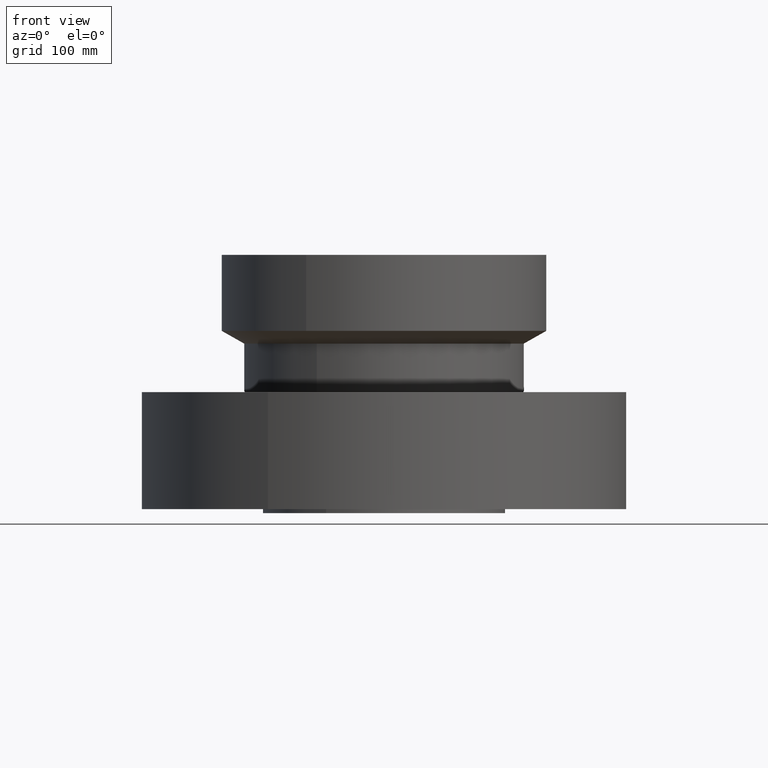
[diagram: clean part render]
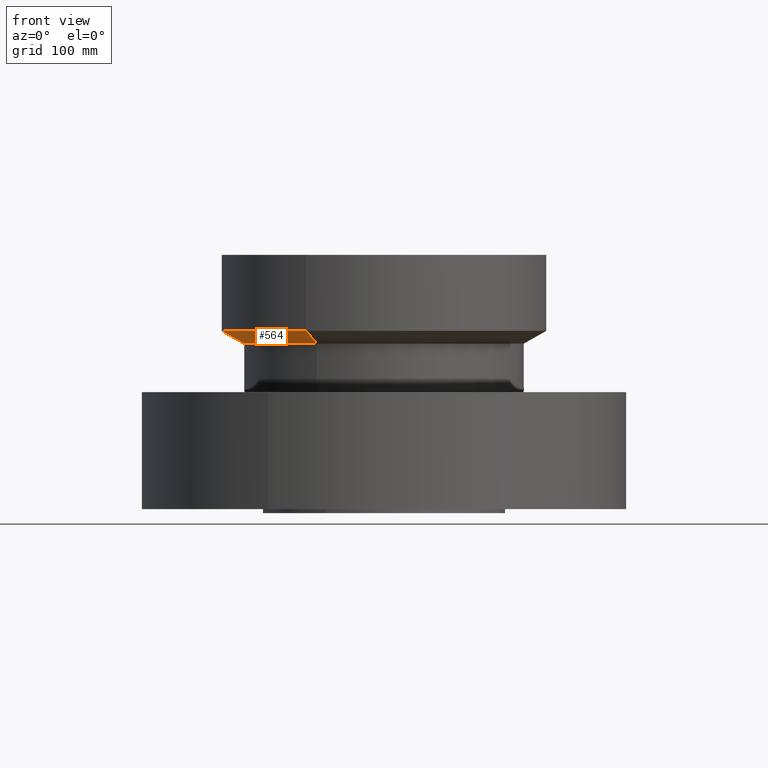
[diagram: same view with one face highlighted and labeled with its STEP entity id]
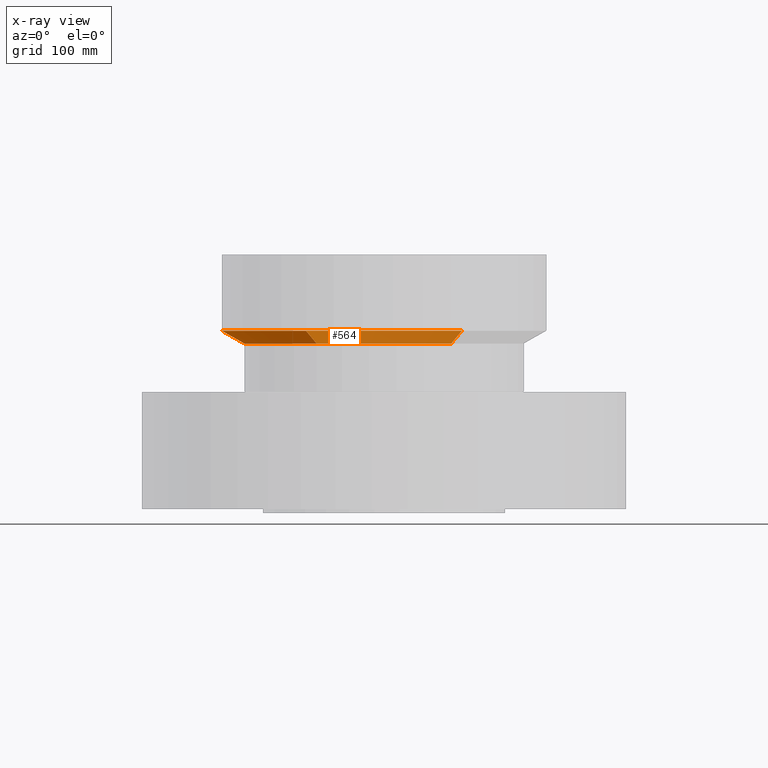
[diagram: x-ray of the same camera — body ghosted, the highlighted face saturated]
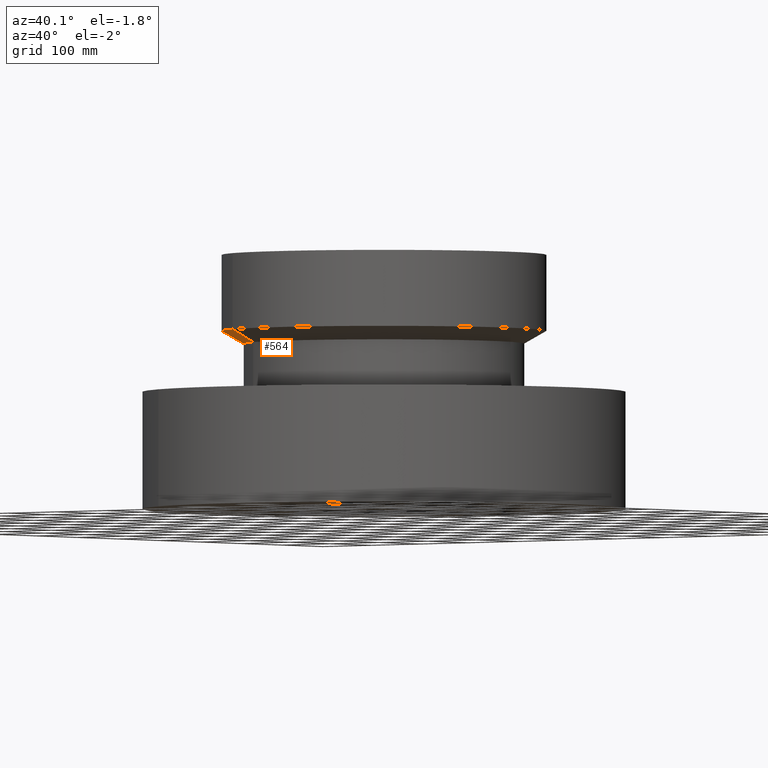
[diagram: same view with one face highlighted and labeled with its STEP entity id]
A machine part, front view. The second image highlights one B-rep face of the part: STEP entity #564.
The next image is the same camera in x-ray: the body ghosted, the highlighted face saturated — about 65% of this face is hidden behind the body in this view.
A second angle (auxiliary view) of the same face is appended — the face is thin or edge-on in the first view.
In plain terms, the highlighted conical surface has half-angle 60 deg.
Its self-contained STEP definition (entity closure, byte-faithful):
#512=AXIS2_PLACEMENT_3D('Circle Axis2P3D',#510,#511,$) ;
#525=AXIS2_PLACEMENT_3D('Cone Axis2P3D',#522,#523,#524) ;
#555=AXIS2_PLACEMENT_3D('Circle Axis2P3D',#553,#554,$) ;
#488=CARTESIAN_POINT('Vertex',(4.16620793049,7.62619246286,10.25)) ;
#495=CARTESIAN_POINT('Vertex',(-4.16620793049,-7.62619246286,10.25)) ;
#510=CARTESIAN_POINT('Axis2P3D Location',(0.,0.,10.25)) ;
#522=CARTESIAN_POINT('Axis2P3D Location',(0.,0.,10.25)) ;
#527=CARTESIAN_POINT('Line Origine',(4.49461442443,8.22733651776,10.6454849344)) ;
#531=CARTESIAN_POINT('Vertex',(4.82302091838,8.82848057265,11.0409698688)) ;
#538=CARTESIAN_POINT('Vertex',(-4.82302091838,-8.82848057265,11.0409698688)) ;
#541=CARTESIAN_POINT('Line Origine',(-4.49461442443,-8.22733651776,10.6454849344)) ;
#553=CARTESIAN_POINT('Axis2P3D Location',(0.,0.,11.0409698688)) ;
#511=DIRECTION('Axis2P3D Direction',(0.,0.,-0.0393700787402)) ;
#523=DIRECTION('Axis2P3D Direction',(-0.,-0.,0.0393700787402)) ;
#524=DIRECTION('Axis2P3D XDirection',(0.0188750212049,0.0345504945626,0.)) ;
#528=DIRECTION('Vector Direction',(0.0163462478604,0.0299216060045,0.0196850393701)) ;
#542=DIRECTION('Vector Direction',(-0.0163462478604,-0.0299216060045,0.0196850393701)) ;
#554=DIRECTION('Axis2P3D Direction',(-0.,0.,0.0393700787402)) ;
#529=VECTOR('Line Direction',#528,0.0393700787402) ;
#543=VECTOR('Line Direction',#542,0.0393700787402) ;
#559=ORIENTED_EDGE('',*,*,#514,.F.) ;
#560=ORIENTED_EDGE('',*,*,#545,.T.) ;
#561=ORIENTED_EDGE('',*,*,#557,.T.) ;
#562=ORIENTED_EDGE('',*,*,#533,.F.) ;
#564=ADVANCED_FACE('PartBody',(#563),#526,.T.) ;
#513=CIRCLE('generated circle',#512,8.69000000003) ;
#556=CIRCLE('generated circle',#555,10.06) ;
#526=CONICAL_SURFACE('Cone',#525,8.69000000003,1.0471975512) ;
#514=EDGE_CURVE('',#496,#489,#513,.T.) ;
#533=EDGE_CURVE('',#489,#532,#530,.T.) ;
#545=EDGE_CURVE('',#496,#539,#544,.T.) ;
#557=EDGE_CURVE('',#539,#532,#556,.F.) ;
#558=EDGE_LOOP('',(#559,#560,#561,#562)) ;
#563=FACE_OUTER_BOUND('',#558,.T.) ;
#530=LINE('Line',#527,#529) ;
#544=LINE('Line',#541,#543) ;
#489=VERTEX_POINT('',#488) ;
#496=VERTEX_POINT('',#495) ;
#532=VERTEX_POINT('',#531) ;
#539=VERTEX_POINT('',#538) ;